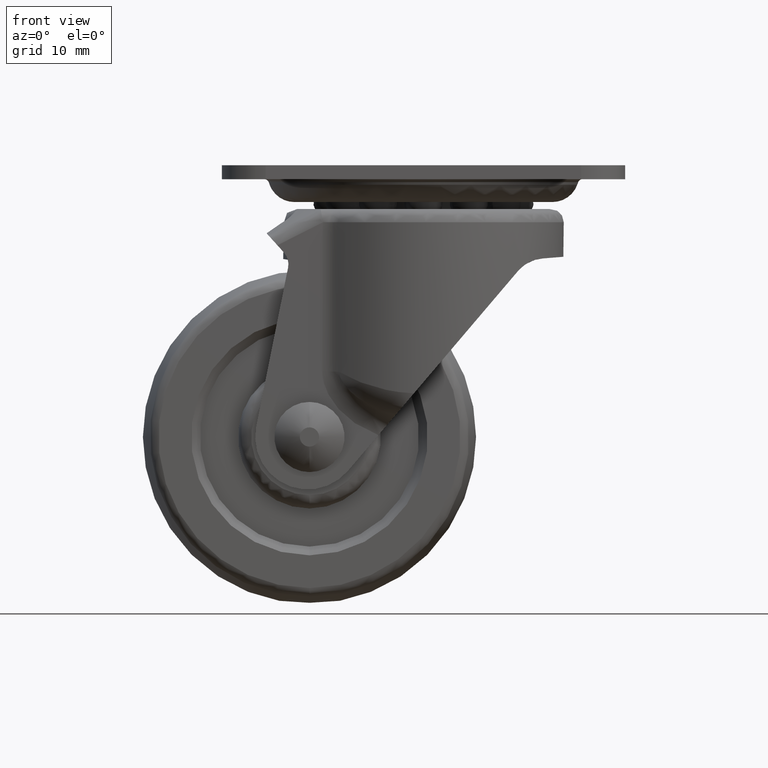
[diagram: clean part render]
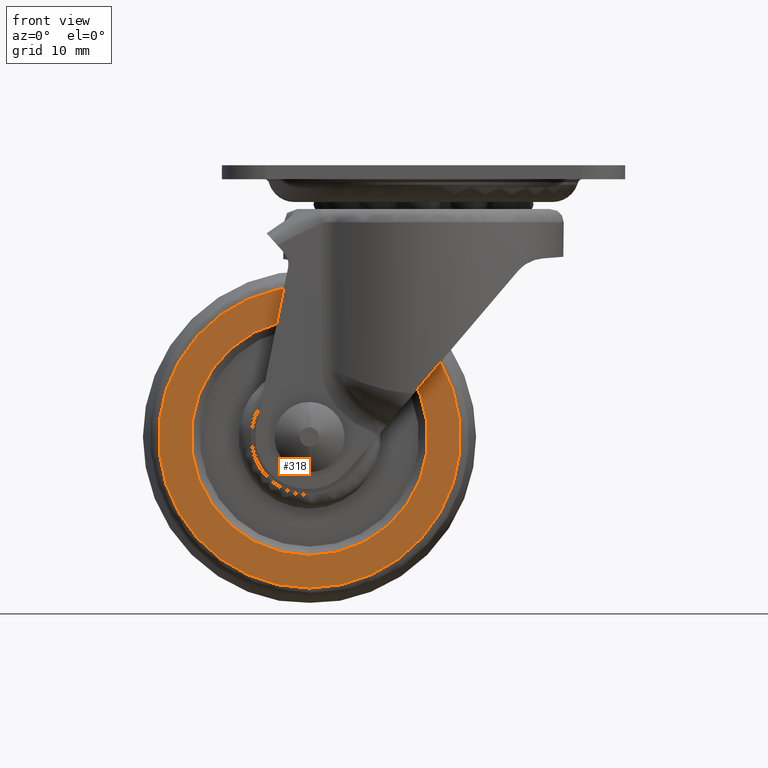
[diagram: same view with one face highlighted and labeled with its STEP entity id]
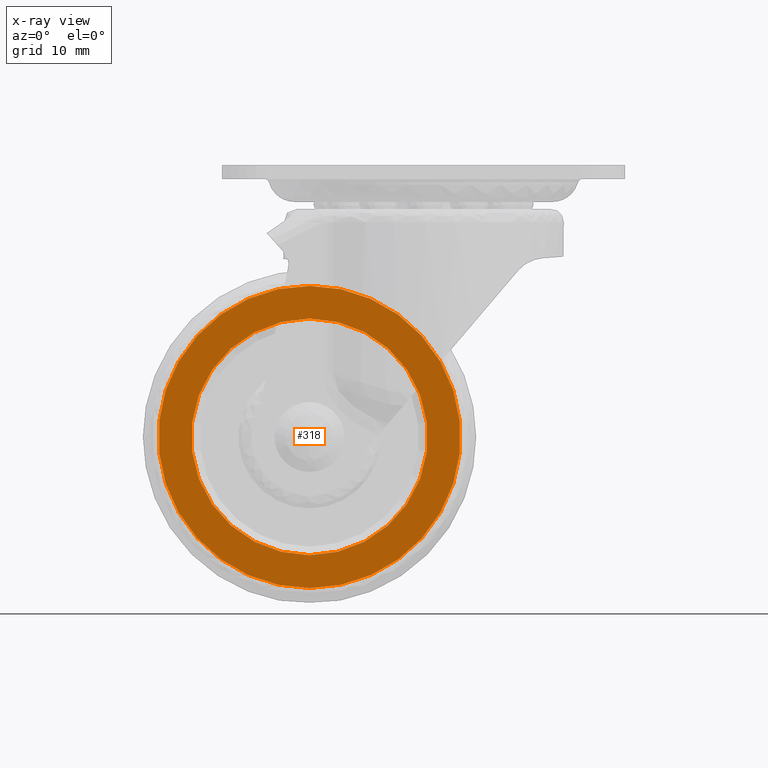
[diagram: x-ray of the same camera — body ghosted, the highlighted face saturated]
A machine part, front view. The second image highlights one B-rep face of the part: STEP entity #318.
The next image is the same camera in x-ray: the body ghosted, the highlighted face saturated — about 0% of this face is hidden behind the body in this view.
In plain terms, the highlighted planar face has unit normal (0, 1, 0).
Its self-contained STEP definition (entity closure, byte-faithful):
#318=ADVANCED_FACE('',(#1434,#1435),#1433,.F.);
#1433=PLANE('',#4305);
#1434=FACE_OUTER_BOUND('',#4306,.T.);
#1435=FACE_BOUND('',#4307,.T.);
#4302=CARTESIAN_POINT('',(-4.88158139454E+01,-8.50000000000E+00,-5.34016476000E+01));
#4303=DIRECTION('',(0.00000000000E+00,1.00000000000E+00,0.00000000000E+00));
#4304=DIRECTION('',(0.00000000000E+00,0.00000000000E+00,1.00000000000E+00));
#4305=AXIS2_PLACEMENT_3D('',#4302,#4303,#4304);
#4306=EDGE_LOOP('',(#6159,#6160));
#4307=EDGE_LOOP('',(#6161,#6162));
#6159=ORIENTED_EDGE('',*,*,#7106,.T.);
#6160=ORIENTED_EDGE('',*,*,#7107,.T.);
#6161=ORIENTED_EDGE('',*,*,#7108,.F.);
#6162=ORIENTED_EDGE('',*,*,#7109,.F.);
#7106=EDGE_CURVE('',#9181,#9182,#9183,.T.);
#7107=EDGE_CURVE('',#9182,#9181,#9189,.T.);
#7108=EDGE_CURVE('',#9195,#9196,#9197,.T.);
#7109=EDGE_CURVE('',#9196,#9195,#9203,.T.);
#9181=VERTEX_POINT('',#12980);
#9182=VERTEX_POINT('',#12981);
#9183=CIRCLE('',#12985,1.72318920000E+01);
#9189=CIRCLE('',#12989,1.72318920000E+01);
#9195=VERTEX_POINT('',#12990);
#9196=VERTEX_POINT('',#12991);
#9197=CIRCLE('',#12995,1.35000000000E+01);
#9203=CIRCLE('',#12999,1.35000000000E+01);
#12980=CARTESIAN_POINT('',(-1.29999990000E+01,-8.50000000000E+00,-4.82320800000E+01));
#12981=CARTESIAN_POINT('',(-1.29999990000E+01,-8.50000000000E+00,-1.37682960000E+01));
#12982=CARTESIAN_POINT('',(-1.29999990000E+01,-8.50000000000E+00,-3.10001880000E+01));
#12983=DIRECTION('',(0.00000000000E+00,-1.00000000000E+00,-0.00000000000E+00));
#12984=DIRECTION('',(-1.22460635382E-16,0.00000000000E+00,-1.00000000000E+00));
#12985=AXIS2_PLACEMENT_3D('',#12982,#12983,#12984);
#12986=CARTESIAN_POINT('',(-1.29999990000E+01,-8.50000000000E+00,-3.10001880000E+01));
#12987=DIRECTION('',(0.00000000000E+00,-1.00000000000E+00,-0.00000000000E+00));
#12988=DIRECTION('',(-1.22460635382E-16,0.00000000000E+00,-1.00000000000E+00));
#12989=AXIS2_PLACEMENT_3D('',#12986,#12987,#12988);
#12990=CARTESIAN_POINT('',(-1.29999990000E+01,-8.50000000000E+00,-1.75001880000E+01));
#12991=CARTESIAN_POINT('',(-1.29999990000E+01,-8.50000000000E+00,-4.45001880000E+01));
#12992=CARTESIAN_POINT('',(-1.29999990000E+01,-8.50000000000E+00,-3.10001880000E+01));
#12993=DIRECTION('',(0.00000000000E+00,-1.00000000000E+00,-0.00000000000E+00));
#12994=DIRECTION('',(-1.22460635382E-16,0.00000000000E+00,-1.00000000000E+00));
#12995=AXIS2_PLACEMENT_3D('',#12992,#12993,#12994);
#12996=CARTESIAN_POINT('',(-1.29999990000E+01,-8.50000000000E+00,-3.10001880000E+01));
#12997=DIRECTION('',(0.00000000000E+00,-1.00000000000E+00,-0.00000000000E+00));
#12998=DIRECTION('',(-1.22460635382E-16,0.00000000000E+00,-1.00000000000E+00));
#12999=AXIS2_PLACEMENT_3D('',#12996,#12997,#12998);